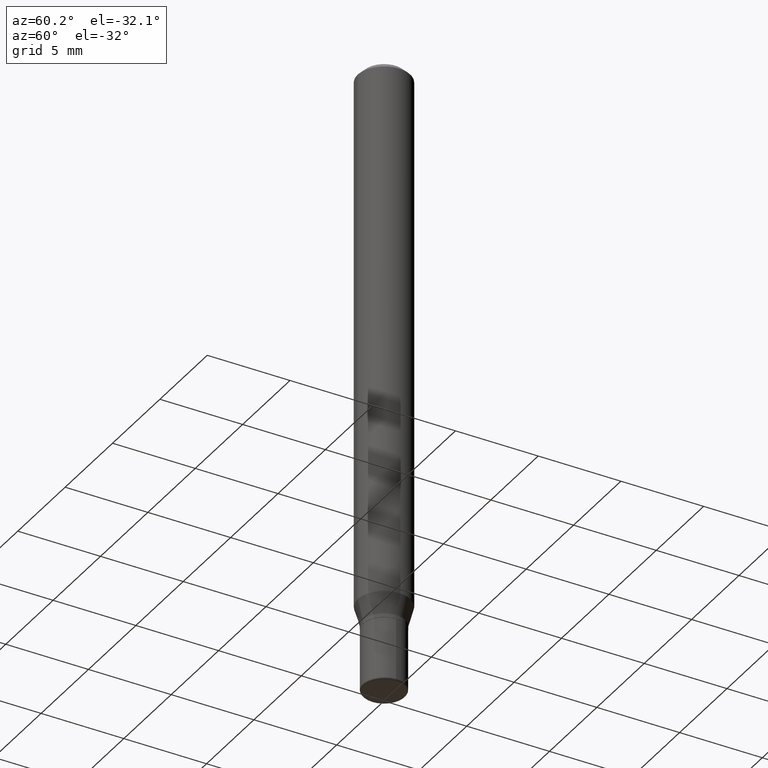
[diagram: clean part render]
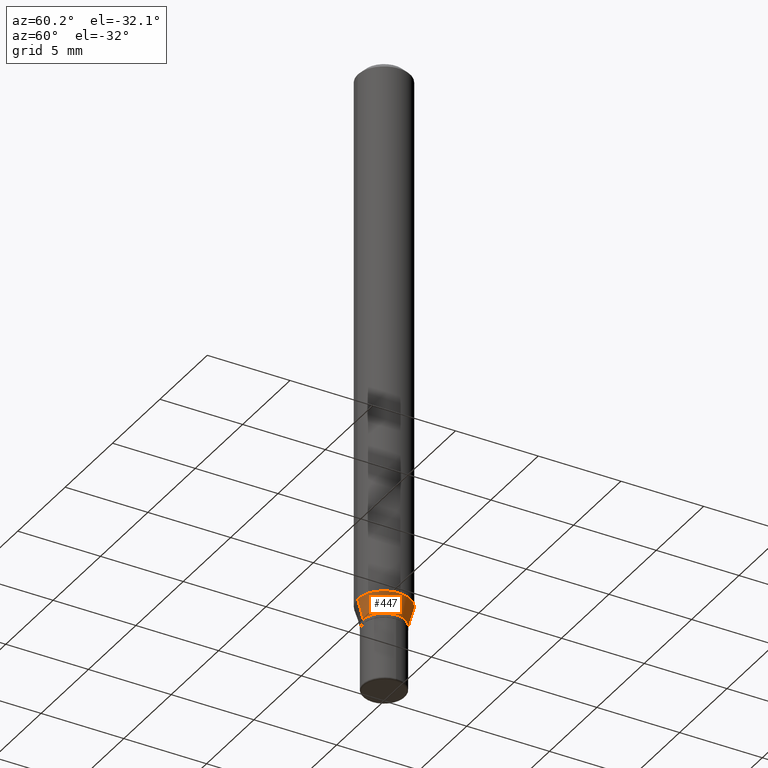
[diagram: same view with one face highlighted and labeled with its STEP entity id]
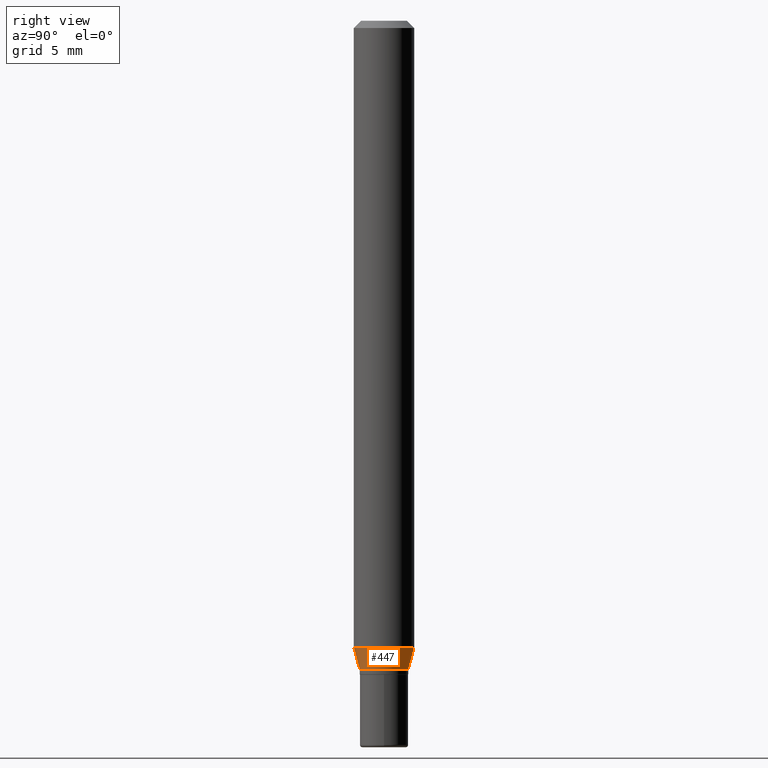
[diagram: same view with one face highlighted and labeled with its STEP entity id]
A machine part, auxiliary view. The second image highlights one B-rep face of the part: STEP entity #447.
A second angle (right view) of the same face is appended — the face is thin or edge-on in the first view.
In plain terms, the highlighted conical surface has half-angle 15 deg.
Its self-contained STEP definition (entity closure, byte-faithful):
#5 = DIRECTION ( 'NONE',  ( -6.982962677686265922E-15, -1.000000000000000000, 4.370956789862821150E-15 ) ) ;
#12 = DIRECTION ( 'NONE',  ( 1.839019923739594399E-15, 0.2588190451025241257, 0.9659258262890673130 ) ) ;
#20 = CARTESIAN_POINT ( 'NONE',  ( 4.440892098500943678E-16, 0.06249999999999551747, -1.293349364905389098 ) ) ;
#45 = CARTESIAN_POINT ( 'NONE',  ( 3.276879829267111616E-29, -4.678654264104954108E-15, -1.339999999999999858 ) ) ;
#68 = CONICAL_SURFACE ( 'NONE', #491, 0.04999999999999998196, 0.2617993877991494633 ) ;
#73 = ORIENTED_EDGE ( 'NONE', *, *, #322, .T. ) ;
#89 = DIRECTION ( 'NONE',  ( -6.982962677686265133E-15, -1.000000000000000000, 5.463695987328528015E-15 ) ) ;
#116 = VERTEX_POINT ( 'NONE', #393 ) ;
#131 = CARTESIAN_POINT ( 'NONE',  ( 3.552713678800826532E-16, 0.04999999999999529821, -1.340000000000000080 ) ) ;
#169 = DIRECTION ( 'NONE',  ( -6.982962677686265133E-15, -1.000000000000000000, 5.463695987328528015E-15 ) ) ;
#174 = DIRECTION ( 'NONE',  ( -2.445432708408292326E-29, 3.491533032914144486E-15, 1.000000000000000000 ) ) ;
#181 = EDGE_CURVE ( 'NONE', #432, #116, #436, .T. ) ;
#182 = VECTOR ( 'NONE', #352, 39.37007874015748854 ) ;
#193 = ORIENTED_EDGE ( 'NONE', *, *, #388, .F. ) ;
#229 = VERTEX_POINT ( 'NONE', #469 ) ;
#236 = VECTOR ( 'NONE', #12, 39.37007874015748854 ) ;
#248 = ORIENTED_EDGE ( 'NONE', *, *, #326, .T. ) ;
#257 = DIRECTION ( 'NONE',  ( -2.445432708408292326E-29, 3.491533032914144486E-15, 1.000000000000000000 ) ) ;
#258 = EDGE_LOOP ( 'NONE', ( #248, #73, #193, #449 ) ) ;
#259 = LINE ( 'NONE', #131, #236 ) ;
#262 = AXIS2_PLACEMENT_3D ( 'NONE', #292, #257, #89 ) ;
#292 = CARTESIAN_POINT ( 'NONE',  ( 3.276879829267111616E-29, -4.678654264104954108E-15, -1.339999999999999858 ) ) ;
#308 = CARTESIAN_POINT ( 'NONE',  ( 3.162798840338729731E-29, -4.515772030665694516E-15, -1.293349364905388876 ) ) ;
#311 = VERTEX_POINT ( 'NONE', #20 ) ;
#322 = EDGE_CURVE ( 'NONE', #229, #311, #259, .T. ) ;
#326 = EDGE_CURVE ( 'NONE', #432, #229, #516, .T. ) ;
#329 = CARTESIAN_POINT ( 'NONE',  ( -3.491481338842803513E-16, -0.05000000000000465877, -1.339999999999999636 ) ) ;
#352 = DIRECTION ( 'NONE',  ( -1.807323732225324223E-15, -0.2588190451025173533, 0.9659258262890690894 ) ) ;
#356 = CARTESIAN_POINT ( 'NONE',  ( -3.491481338842803513E-16, -0.05000000000000465877, -1.339999999999999636 ) ) ;
#357 = CIRCLE ( 'NONE', #467, 0.06250000000000000000 ) ;
#388 = EDGE_CURVE ( 'NONE', #116, #311, #357, .T. ) ;
#393 = CARTESIAN_POINT ( 'NONE',  ( -4.364351673553597698E-16, -0.06250000000000449640, -1.293349364905388654 ) ) ;
#394 = DIRECTION ( 'NONE',  ( -2.445432708408292326E-29, 3.491533032914144486E-15, 1.000000000000000000 ) ) ;
#432 = VERTEX_POINT ( 'NONE', #329 ) ;
#436 = LINE ( 'NONE', #356, #182 ) ;
#447 = ADVANCED_FACE ( 'NONE', ( #489 ), #68, .T. ) ;
#449 = ORIENTED_EDGE ( 'NONE', *, *, #181, .F. ) ;
#467 = AXIS2_PLACEMENT_3D ( 'NONE', #308, #394, #5 ) ;
#469 = CARTESIAN_POINT ( 'NONE',  ( 3.996802888650884119E-16, 0.04999999999999529821, -1.340000000000000080 ) ) ;
#489 = FACE_OUTER_BOUND ( 'NONE', #258, .T. ) ;
#491 = AXIS2_PLACEMENT_3D ( 'NONE', #45, #174, #169 ) ;
#516 = CIRCLE ( 'NONE', #262, 0.04999999999999998196 ) ;